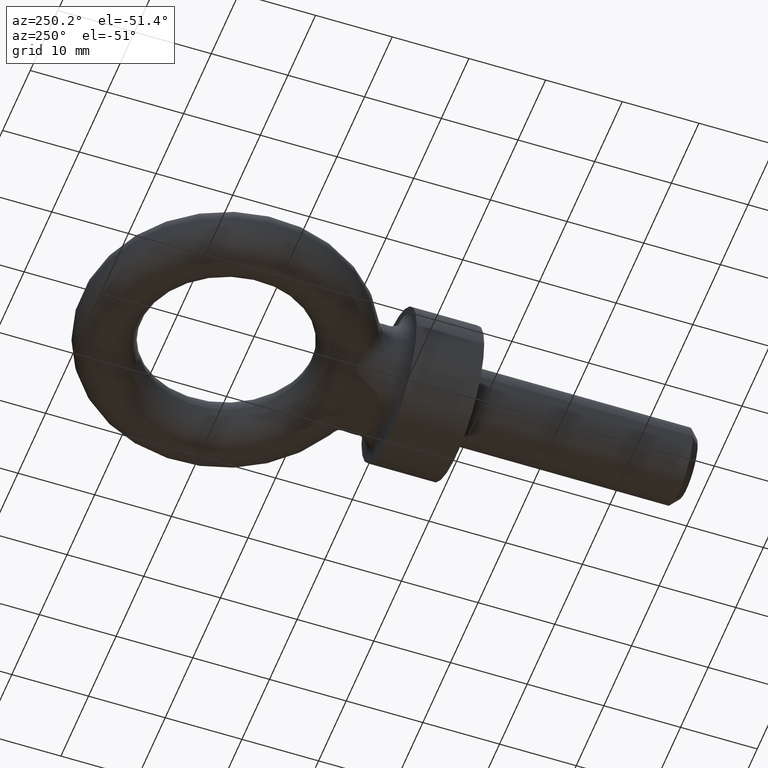
[diagram: clean part render]
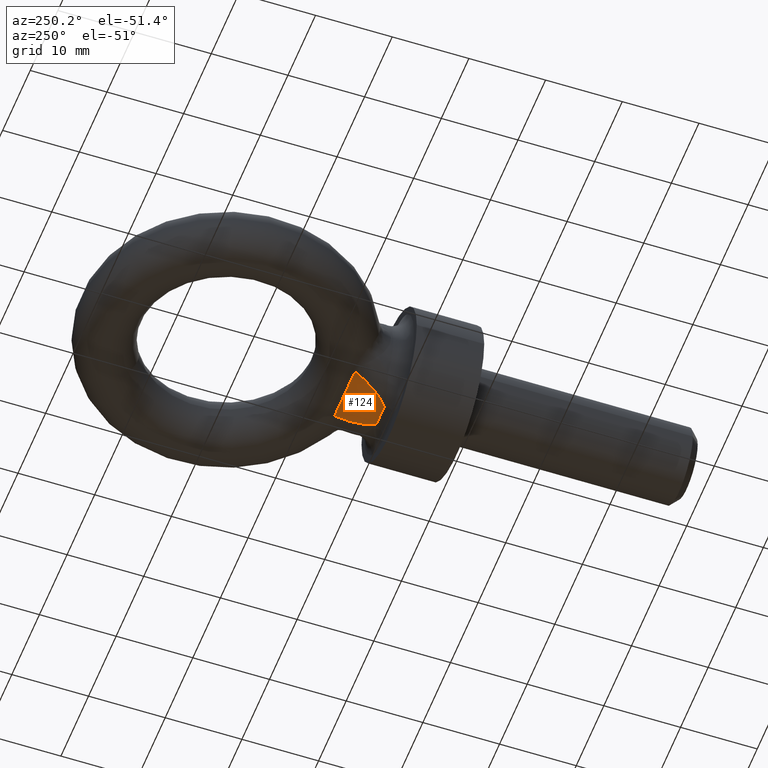
[diagram: same view with one face highlighted and labeled with its STEP entity id]
A machine part, auxiliary view. The second image highlights one B-rep face of the part: STEP entity #124.
In plain terms, the highlighted planar face has unit normal (0, 0.4356, -0.9002).
Its self-contained STEP definition (entity closure, byte-faithful):
#109=PLANE('',#627);
#114=LINE('',#848,#118);
#118=VECTOR('',#695,1.);
#124=ADVANCED_FACE('',(#169),#109,.T.);
#169=FACE_OUTER_BOUND('',#203,.T.);
#203=EDGE_LOOP('',(#327,#328,#329,#330,#331,#332));
#249=B_SPLINE_CURVE_WITH_KNOTS('',3,(#842,#843,#844,#845),.UNSPECIFIED.,
 .F.,.F.,(4,4),(0.,1.),.UNSPECIFIED.);
#250=B_SPLINE_CURVE_WITH_KNOTS('',3,(#850,#851,#852,#853),.UNSPECIFIED.,
 .F.,.F.,(4,4),(0.,1.),.UNSPECIFIED.);
#251=B_SPLINE_CURVE_WITH_KNOTS('',3,(#857,#858,#859,#860,#861,#862,#863),
 .UNSPECIFIED.,.F.,.F.,(4,3,4),(0.,0.499999235813751,1.),.UNSPECIFIED.);
#327=ORIENTED_EDGE('',*,*,#538,.T.);
#328=ORIENTED_EDGE('',*,*,#539,.T.);
#329=ORIENTED_EDGE('',*,*,#540,.T.);
#330=ORIENTED_EDGE('',*,*,#541,.T.);
#331=ORIENTED_EDGE('',*,*,#542,.T.);
#332=ORIENTED_EDGE('',*,*,#543,.T.);
#489=VERTEX_POINT('',#846);
#490=VERTEX_POINT('',#847);
#491=VERTEX_POINT('',#849);
#492=VERTEX_POINT('',#854);
#493=VERTEX_POINT('',#856);
#494=VERTEX_POINT('',#864);
#538=EDGE_CURVE('',#489,#490,#249,.T.);
#539=EDGE_CURVE('',#490,#491,#114,.T.);
#540=EDGE_CURVE('',#491,#492,#250,.T.);
#541=EDGE_CURVE('',#492,#493,#611,.T.);
#542=EDGE_CURVE('',#493,#494,#251,.T.);
#543=EDGE_CURVE('',#494,#489,#612,.T.);
#611=ELLIPSE('',#625,9.18356019078536,4.);
#612=ELLIPSE('',#626,9.18356019078536,4.);
#625=AXIS2_PLACEMENT_3D('',#855,#696,#697);
#626=AXIS2_PLACEMENT_3D('',#865,#698,#699);
#627=AXIS2_PLACEMENT_3D('',#866,#700,#701);
#695=DIRECTION('',(-1.,-1.1682767539609E-18,-5.65295203529468E-19));
#696=DIRECTION('',(0.,0.435560928104281,-0.900159251415514));
#697=DIRECTION('',(-1.29785563179378E-18,0.900159251415513,0.435560928104281));
#698=DIRECTION('',(0.,0.435560928104281,-0.900159251415514));
#699=DIRECTION('',(-1.29785563179378E-18,0.900159251415513,0.435560928104281));
#700=DIRECTION('',(0.,0.435560928104281,-0.900159251415513));
#701=DIRECTION('',(0.,0.900159251415513,0.435560928104281));
#842=CARTESIAN_POINT('',(1.59725721971148,10.1066827843128,-6.36773413662282));
#843=CARTESIAN_POINT('',(1.53116209666537,10.0471887476193,-6.39652157373261));
#844=CARTESIAN_POINT('',(1.46484157662471,9.9878963982732,-6.42521142019039));
#845=CARTESIAN_POINT('',(1.39822211206379,9.92887814380208,-6.45376864009577));
#846=CARTESIAN_POINT('',(1.59725721971148,10.1066827843128,-6.36773413662282));
#847=CARTESIAN_POINT('',(1.39822211206379,9.92887814380208,-6.45376864009577));
#848=CARTESIAN_POINT('',(20.,9.92887814379144,-6.45376864010092));
#849=CARTESIAN_POINT('',(-1.39822211205178,9.92887814379144,-6.45376864010092));
#850=CARTESIAN_POINT('',(-1.39822211205178,9.92887814379144,-6.45376864010092));
#851=CARTESIAN_POINT('',(-1.4648415766163,9.98789639826569,-6.42521142019402));
#852=CARTESIAN_POINT('',(-1.53116209666053,10.0471887476149,-6.39652157373471));
#853=CARTESIAN_POINT('',(-1.59725721971018,10.1066827843117,-6.36773413662339));
#854=CARTESIAN_POINT('',(-1.59725721971018,10.1066827843117,-6.36773413662339));
#855=CARTESIAN_POINT('',(-1.61104958228865E-18,17.6856793078905,-2.70047775424654));
#856=CARTESIAN_POINT('',(-3.70844720320847,14.5874576052462,-4.19961728778412));
#857=CARTESIAN_POINT('',(-3.70844720320847,14.5874576052462,-4.19961728778412));
#858=CARTESIAN_POINT('',(-2.47218173507192,14.5845021861384,-4.20104732928788));
#859=CARTESIAN_POINT('',(-1.23621805981274,14.6292384892234,-4.17940073102093));
#860=CARTESIAN_POINT('',(5.06500105124884E-5,14.6307351213099,-4.17867655420489));
#861=CARTESIAN_POINT('',(1.23627948602528,14.632231705125,-4.17795240074597));
#862=CARTESIAN_POINT('',(2.47219843676059,14.5887561730898,-4.19898894850496));
#863=CARTESIAN_POINT('',(3.70842741278081,14.5873564315986,-4.19966624277486));
#864=CARTESIAN_POINT('',(3.70842741278081,14.5873564315986,-4.19966624277486));
#865=CARTESIAN_POINT('',(-1.61104958228865E-18,17.6856793078905,-2.70047775424654));
#866=CARTESIAN_POINT('',(20.,15.,-4.));